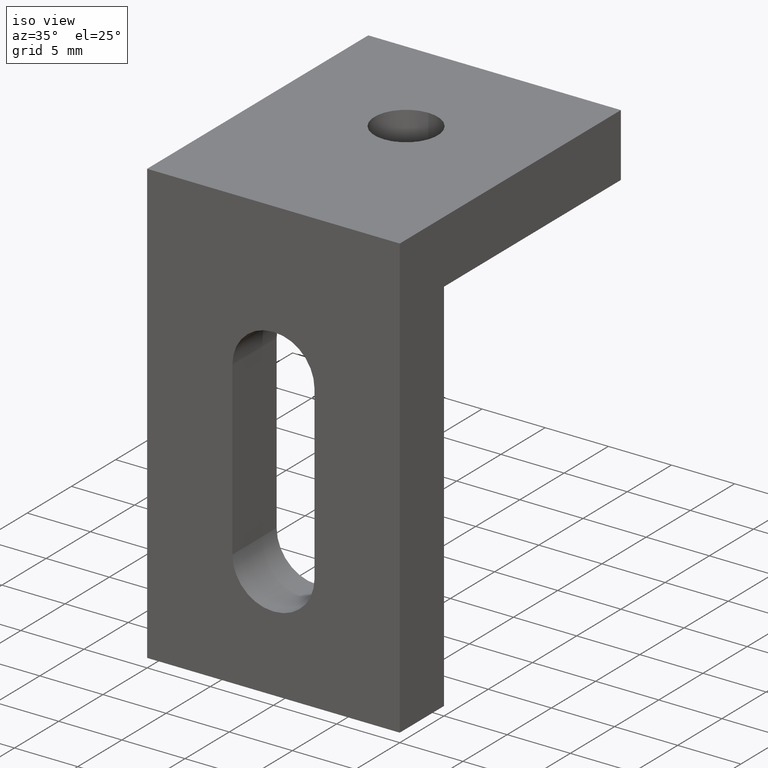
[diagram: clean part render]
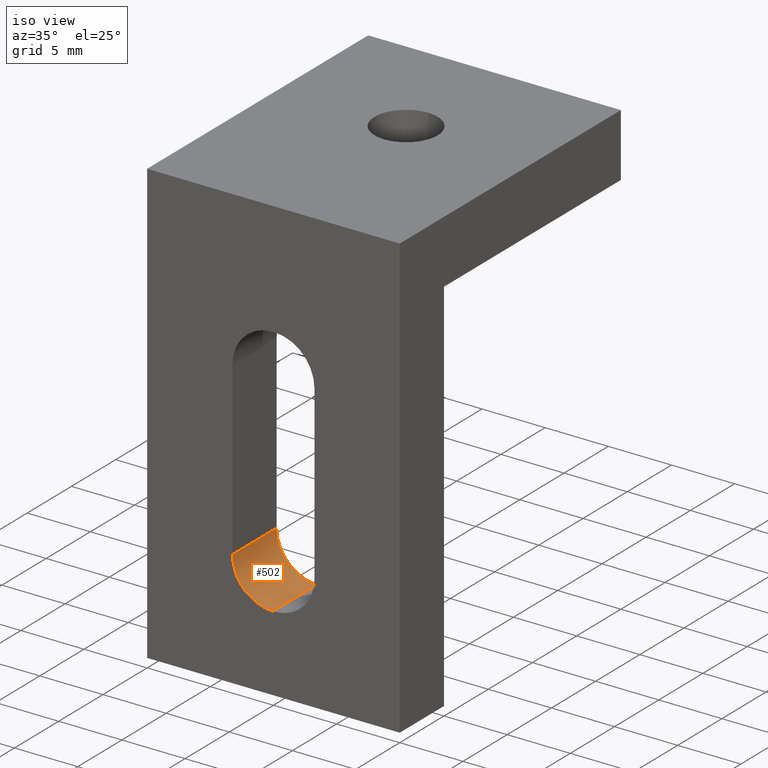
[diagram: same view with one face highlighted and labeled with its STEP entity id]
A machine part, iso view. The second image highlights one B-rep face of the part: STEP entity #502.
In plain terms, the highlighted cylindrical surface (partial cylindrical patch) has radius 3.2 mm, axis along (0, -1, -0).
Its self-contained STEP definition (entity closure, byte-faithful):
#4 = VERTEX_POINT ( 'NONE', #23 ) ;
#7 = DIRECTION ( 'NONE',  ( -0.0000000000000000000, -1.000000000000000000, -1.652117596168388200E-016 ) ) ;
#10 = CARTESIAN_POINT ( 'NONE',  ( 6.750000000000008000, 4.999999999999999100, -25.80000000000000400 ) ) ;
#21 = VERTEX_POINT ( 'NONE', #58 ) ;
#23 = CARTESIAN_POINT ( 'NONE',  ( 9.950000000000006400, 5.000000000000000000, -29.00000000000000400 ) ) ;
#24 = VERTEX_POINT ( 'NONE', #68 ) ;
#37 = DIRECTION ( 'NONE',  ( 0.0000000000000000000, -1.000000000000000000, -1.652117596168388200E-016 ) ) ;
#44 = DIRECTION ( 'NONE',  ( 0.0000000000000000000, 1.652117596168387500E-016, -1.000000000000000000 ) ) ;
#53 = CARTESIAN_POINT ( 'NONE',  ( 9.950000000000008200, -1.396039368762287700E-015, -25.80000000000000400 ) ) ;
#55 = VERTEX_POINT ( 'NONE', #10 ) ;
#58 = CARTESIAN_POINT ( 'NONE',  ( 6.750000000000008000, -1.422473250300982200E-015, -25.80000000000000400 ) ) ;
#66 = CARTESIAN_POINT ( 'NONE',  ( 9.950000000000006400, -8.673617379884029600E-016, -29.00000000000000400 ) ) ;
#68 = CARTESIAN_POINT ( 'NONE',  ( 9.950000000000006400, -8.673617379884035500E-016, -29.00000000000000400 ) ) ;
#186 = ORIENTED_EDGE ( 'NONE', *, *, #575, .F. ) ;
#204 = ORIENTED_EDGE ( 'NONE', *, *, #497, .F. ) ;
#214 = FACE_OUTER_BOUND ( 'NONE', #324, .T. ) ;
#254 = CYLINDRICAL_SURFACE ( 'NONE', #558, 3.200000000000001500 ) ;
#264 = LINE ( 'NONE', #539, #371 ) ;
#273 = ORIENTED_EDGE ( 'NONE', *, *, #635, .F. ) ;
#292 = CIRCLE ( 'NONE', #622, 3.200000000000001500 ) ;
#324 = EDGE_LOOP ( 'NONE', ( #186, #204, #335, #273 ) ) ;
#326 = VECTOR ( 'NONE', #7, 1000.000000000000000 ) ;
#335 = ORIENTED_EDGE ( 'NONE', *, *, #576, .F. ) ;
#371 = VECTOR ( 'NONE', #542, 1000.000000000000000 ) ;
#374 = CIRCLE ( 'NONE', #598, 3.200000000000001500 ) ;
#385 = LINE ( 'NONE', #66, #326 ) ;
#468 = DIRECTION ( 'NONE',  ( 0.0000000000000000000, 0.0000000000000000000, 1.000000000000000000 ) ) ;
#471 = CARTESIAN_POINT ( 'NONE',  ( 9.950000000000008200, 0.0000000000000000000, -25.80000000000000400 ) ) ;
#472 = DIRECTION ( 'NONE',  ( -0.0000000000000000000, 1.000000000000000000, 0.0000000000000000000 ) ) ;
#473 = CARTESIAN_POINT ( 'NONE',  ( 9.950000000000008200, 4.999999999999998200, -25.80000000000000400 ) ) ;
#486 = DIRECTION ( 'NONE',  ( 0.0000000000000000000, -1.000000000000000000, -1.445602896647339200E-016 ) ) ;
#488 = DIRECTION ( 'NONE',  ( 0.0000000000000000000, 2.710505431213759600E-016, -1.000000000000000000 ) ) ;
#497 = EDGE_CURVE ( 'NONE', #4, #24, #385, .T. ) ;
#502 = ADVANCED_FACE ( 'NONE', ( #214 ), #254, .F. ) ;
#539 = CARTESIAN_POINT ( 'NONE',  ( 6.750000000000008000, 4.999999999999999100, -25.80000000000000400 ) ) ;
#542 = DIRECTION ( 'NONE',  ( 0.0000000000000000000, 1.000000000000000000, 1.652117596168388200E-016 ) ) ;
#558 = AXIS2_PLACEMENT_3D ( 'NONE', #53, #37, #44 ) ;
#575 = EDGE_CURVE ( 'NONE', #24, #21, #292, .T. ) ;
#576 = EDGE_CURVE ( 'NONE', #55, #4, #374, .T. ) ;
#598 = AXIS2_PLACEMENT_3D ( 'NONE', #473, #486, #488 ) ;
#622 = AXIS2_PLACEMENT_3D ( 'NONE', #471, #472, #468 ) ;
#635 = EDGE_CURVE ( 'NONE', #21, #55, #264, .T. ) ;